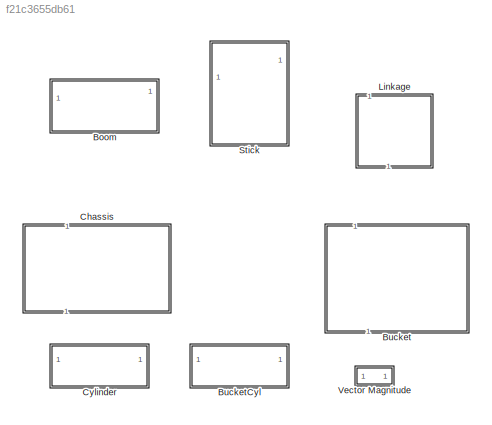
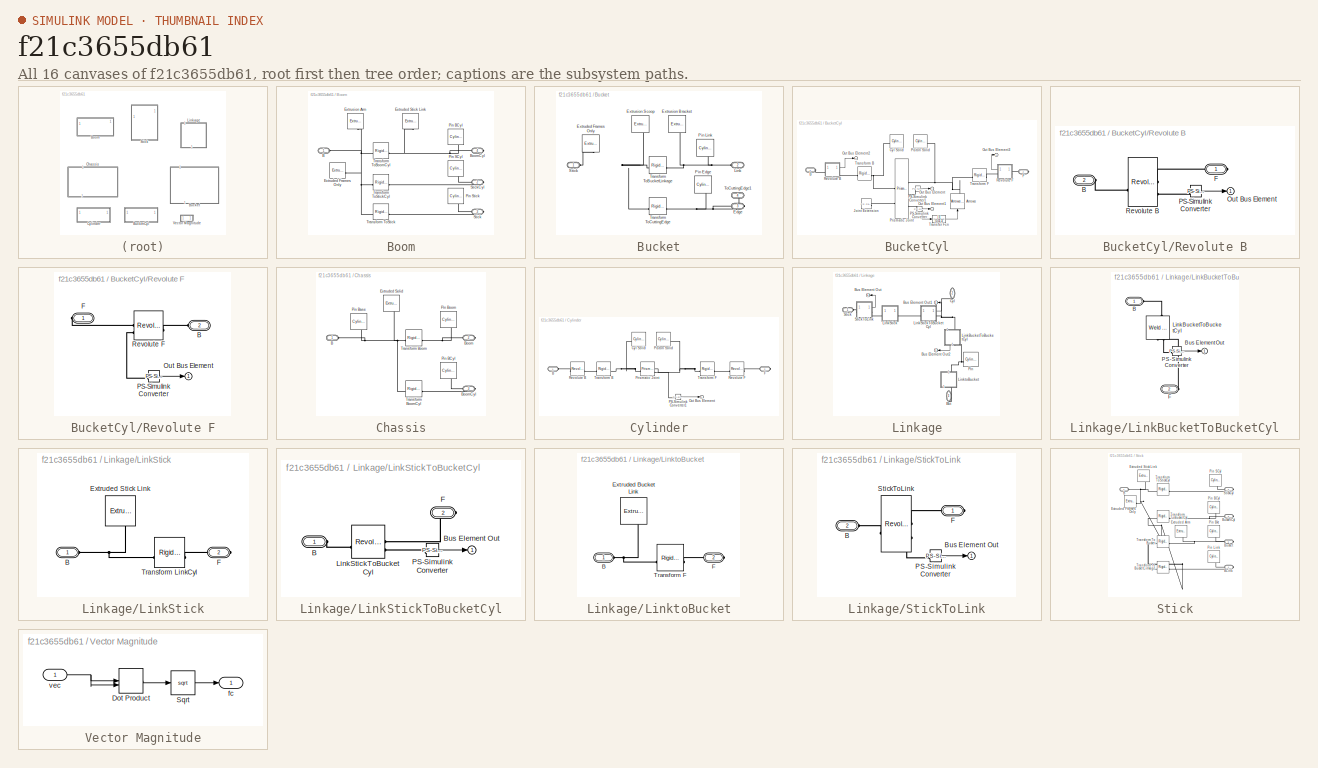
[diagram: thumbnail index - all 16 canvases of the model, root first then tree order]
MODEL slx_f21c3655db61
KIND library
CONFIG SolverName = VariableStepAuto
BLOCK [SubSystem] Boom
BLOCK [PMIOPort] Boom/B
  Side = Left
BLOCK [PMIOPort] Boom/BoomCyl
  Port = 4
  Side = Right
BLOCK [Reference] Boom/Extruded Frames Only  REF=sm_lib/Body Elements/Extruded Solid
  Commented = on
  SourceBlock = sm_lib/Body Elements/Extruded Solid
  SourceType = Extruded Solid
BLOCK [Reference] Boom/Extruded Stick Link  REF=sm_lib/Body Elements/Extruded Solid
  NameLocation = right
  SourceBlock = sm_lib/Body Elements/Extruded Solid
  SourceType = Extruded Solid
BLOCK [Reference] Boom/Extrusion Arm   REF=sm_lib/Body Elements/Extruded Solid
  NameLocation = right
  SourceBlock = sm_lib/Body Elements/Extruded Solid
  SourceType = Extruded Solid
BLOCK [Reference] Boom/Pin BCyl  REF=sm_lib/Body Elements/Cylindrical Solid
  NameLocation = left
  SourceBlock = sm_lib/Body Elements/Cylindrical Solid
  SourceType = Cylindrical Solid
BLOCK [Reference] Boom/Pin SCyl  REF=sm_lib/Body Elements/Cylindrical Solid
  NameLocation = left
  SourceBlock = sm_lib/Body Elements/Cylindrical Solid
  SourceType = Cylindrical Solid
BLOCK [Reference] Boom/Pin Stick  REF=sm_lib/Body Elements/Cylindrical Solid
  NameLocation = left
  SourceBlock = sm_lib/Body Elements/Cylindrical Solid
  SourceType = Cylindrical Solid
BLOCK [PMIOPort] Boom/Stick
  Port = 3
  Side = Right
BLOCK [PMIOPort] Boom/StickCyl
  Port = 2
  Side = Right
BLOCK [Reference] Boom/Transform ToBoomCyl  REF=sm_lib/Frames and
Transforms/Rigid
Transform
  SourceBlock = sm_lib/Frames and\nTransforms/Rigid\nTransform
  SourceType = Rigid\nTransform
BLOCK [Reference] Boom/Transform ToStick  REF=sm_lib/Frames and
Transforms/Rigid
Transform
  SourceBlock = sm_lib/Frames and\nTransforms/Rigid\nTransform
  SourceType = Rigid\nTransform
BLOCK [Reference] Boom/Transform ToStickCyl  REF=sm_lib/Frames and
Transforms/Rigid
Transform
  SourceBlock = sm_lib/Frames and\nTransforms/Rigid\nTransform
  SourceType = Rigid\nTransform
BLOCK [SubSystem] Bucket
  NameLocation = right
BLOCK [PMIOPort] Bucket/Edge
  Port = 3
  Side = Right
BLOCK [Reference] Bucket/Extruded Frames Only  REF=sm_lib/Body Elements/Extruded Solid
  Commented = on
  NameLocation = left
  SourceBlock = sm_lib/Body Elements/Extruded Solid
  SourceType = Extruded Solid
BLOCK [Reference] Bucket/Extrusion Bracket  REF=sm_lib/Body Elements/Extruded Solid
  NameLocation = right
  SourceBlock = sm_lib/Body Elements/Extruded Solid
  SourceType = Extruded Solid
BLOCK [Reference] Bucket/Extrusion Scoop  REF=sm_lib/Body Elements/Extruded Solid
  NameLocation = left
  SourceBlock = sm_lib/Body Elements/Extruded Solid
  SourceType = Extruded Solid
BLOCK [PMIOPort] Bucket/Link
  Port = 2
  Side = Left
BLOCK [Reference] Bucket/Pin Edge  REF=sm_lib/Body Elements/Cylindrical Solid
  NameLocation = right
  SourceBlock = sm_lib/Body Elements/Cylindrical Solid
  SourceType = Cylindrical Solid
BLOCK [Reference] Bucket/Pin Link  REF=sm_lib/Body Elements/Cylindrical Solid
  NameLocation = right
  SourceBlock = sm_lib/Body Elements/Cylindrical Solid
  SourceType = Cylindrical Solid
BLOCK [PMIOPort] Bucket/Stick
  Side = Left
BLOCK [PMIOPort] Bucket/ToCuttingEdge1
  Port = 4
  Side = Right
BLOCK [Reference] Bucket/Transform ToBucketLinkage  REF=sm_lib/Frames and
Transforms/Rigid
Transform
  SourceBlock = sm_lib/Frames and\nTransforms/Rigid\nTransform
  SourceType = Rigid\nTransform
BLOCK [Reference] Bucket/Transform ToCuttingEdge  REF=sm_lib/Frames and
Transforms/Rigid
Transform
  SourceBlock = sm_lib/Frames and\nTransforms/Rigid\nTransform
  SourceType = Rigid\nTransform
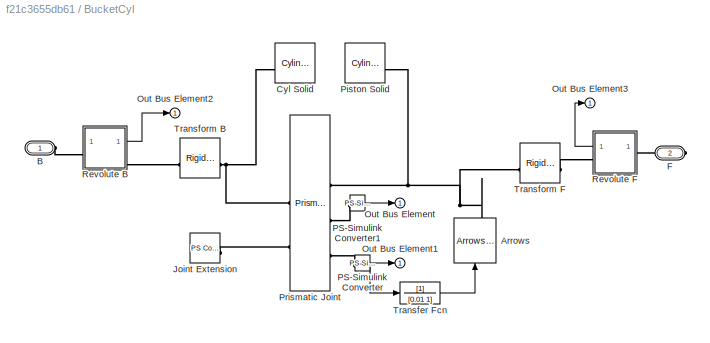
BLOCK [SubSystem] BucketCyl
BLOCK [Reference] BucketCyl/Arrows  REF=Arrowhead_Lib/Arrows Variable PosNeg
  NameLocation = right
  SourceBlock = Arrowhead_Lib/Arrows Variable PosNeg
BLOCK [PMIOPort] BucketCyl/B
  Side = Left
BLOCK [Reference] BucketCyl/Cyl Solid  REF=sm_lib/Body Elements/Cylindrical Solid
  SourceBlock = sm_lib/Body Elements/Cylindrical Solid
  SourceType = Cylindrical Solid
BLOCK [PMIOPort] BucketCyl/F
  Port = 2
  Side = Right
BLOCK [Reference] BucketCyl/Joint Extension  REF=fl_lib/Physical Signals/Sources/PS Constant
  SourceBlock = fl_lib/Physical Signals/Sources/PS Constant
  SourceType = PS Constant
BLOCK [Outport] BucketCyl/Out Bus Element
BLOCK [Outport] BucketCyl/Out Bus Element1
BLOCK [Outport] BucketCyl/Out Bus Element2
BLOCK [Outport] BucketCyl/Out Bus Element3
BLOCK [Reference] BucketCyl/PS-Simulink Converter  REF=nesl_utility/PS-Simulink
Converter
  SourceBlock = nesl_utility/PS-Simulink\nConverter
  SourceType = PS-Simulink\nConverter
BLOCK [Reference] BucketCyl/PS-Simulink Converter1  REF=nesl_utility/PS-Simulink
Converter
  SourceBlock = nesl_utility/PS-Simulink\nConverter
  SourceType = PS-Simulink\nConverter
BLOCK [Reference] BucketCyl/Piston Solid  REF=sm_lib/Body Elements/Cylindrical Solid
  SourceBlock = sm_lib/Body Elements/Cylindrical Solid
  SourceType = Cylindrical Solid
BLOCK [Reference] BucketCyl/Prismatic Joint  REF=sm_lib/Joints/Prismatic
Joint
  SourceBlock = sm_lib/Joints/Prismatic\nJoint
  SourceType = Prismatic\nJoint
BLOCK [SubSystem] BucketCyl/Revolute B
BLOCK [PMIOPort] BucketCyl/Revolute B/B
  Port = 2
  Side = Left
BLOCK [PMIOPort] BucketCyl/Revolute B/F
  Side = Right
BLOCK [Outport] BucketCyl/Revolute B/Out Bus Element
BLOCK [Reference] BucketCyl/Revolute B/PS-Simulink Converter  REF=nesl_utility/PS-Simulink
Converter
  SourceBlock = nesl_utility/PS-Simulink\nConverter
  SourceType = PS-Simulink\nConverter
BLOCK [Reference] BucketCyl/Revolute B/Revolute B  REF=sm_lib/Joints/Revolute Joint
  SourceBlock = sm_lib/Joints/Revolute Joint
  SourceType = Revolute Joint
BLOCK [SubSystem] BucketCyl/Revolute F
BLOCK [PMIOPort] BucketCyl/Revolute F/B
  Port = 2
  Side = Left
BLOCK [PMIOPort] BucketCyl/Revolute F/F
  Side = Right
BLOCK [Outport] BucketCyl/Revolute F/Out Bus Element
BLOCK [Reference] BucketCyl/Revolute F/PS-Simulink Converter  REF=nesl_utility/PS-Simulink
Converter
  SourceBlock = nesl_utility/PS-Simulink\nConverter
  SourceType = PS-Simulink\nConverter
BLOCK [Reference] BucketCyl/Revolute F/Revolute F  REF=sm_lib/Joints/Revolute Joint
  SourceBlock = sm_lib/Joints/Revolute Joint
  SourceType = Revolute Joint
BLOCK [TransferFcn] BucketCyl/Transfer Fcn
  Denominator = [0.01 1]
BLOCK [Reference] BucketCyl/Transform B  REF=sm_lib/Frames and
Transforms/Rigid
Transform
  SourceBlock = sm_lib/Frames and\nTransforms/Rigid\nTransform
  SourceType = Rigid\nTransform
BLOCK [Reference] BucketCyl/Transform F  REF=sm_lib/Frames and
Transforms/Rigid
Transform
  SourceBlock = sm_lib/Frames and\nTransforms/Rigid\nTransform
  SourceType = Rigid\nTransform
BLOCK [SubSystem] Chassis
  NameLocation = right
BLOCK [PMIOPort] Chassis/B
  Side = Left
BLOCK [PMIOPort] Chassis/Boom
  Port = 2
  Side = Right
BLOCK [PMIOPort] Chassis/BoomCyl
  Port = 3
  Side = Right
BLOCK [Reference] Chassis/Extruded Solid  REF=sm_lib/Body Elements/Extruded Solid
  NameLocation = left
  SourceBlock = sm_lib/Body Elements/Extruded Solid
  SourceType = Extruded Solid
BLOCK [Reference] Chassis/Pin BCyl  REF=sm_lib/Body Elements/Cylindrical Solid
  NameLocation = left
  SourceBlock = sm_lib/Body Elements/Cylindrical Solid
  SourceType = Cylindrical Solid
BLOCK [Reference] Chassis/Pin Base  REF=sm_lib/Body Elements/Cylindrical Solid
  NameLocation = left
  SourceBlock = sm_lib/Body Elements/Cylindrical Solid
  SourceType = Cylindrical Solid
BLOCK [Reference] Chassis/Pin Boom  REF=sm_lib/Body Elements/Cylindrical Solid
  NameLocation = left
  SourceBlock = sm_lib/Body Elements/Cylindrical Solid
  SourceType = Cylindrical Solid
BLOCK [Reference] Chassis/Transform Boom  REF=sm_lib/Frames and
Transforms/Rigid
Transform
  SourceBlock = sm_lib/Frames and\nTransforms/Rigid\nTransform
  SourceType = Rigid\nTransform
BLOCK [Reference] Chassis/Transform BoomCyl  REF=sm_lib/Frames and
Transforms/Rigid
Transform
  SourceBlock = sm_lib/Frames and\nTransforms/Rigid\nTransform
  SourceType = Rigid\nTransform
BLOCK [SubSystem] Cylinder
BLOCK [PMIOPort] Cylinder/B
  Side = Left
BLOCK [Reference] Cylinder/Cyl Solid  REF=sm_lib/Body Elements/Cylindrical Solid
  SourceBlock = sm_lib/Body Elements/Cylindrical Solid
  SourceType = Cylindrical Solid
BLOCK [PMIOPort] Cylinder/F
  Port = 2
  Side = Right
BLOCK [Outport] Cylinder/Out Bus Element
BLOCK [Reference] Cylinder/PS-Simulink Converter1  REF=nesl_utility/PS-Simulink
Converter
  SourceBlock = nesl_utility/PS-Simulink\nConverter
  SourceType = PS-Simulink\nConverter
BLOCK [Reference] Cylinder/Piston Solid  REF=sm_lib/Body Elements/Cylindrical Solid
  SourceBlock = sm_lib/Body Elements/Cylindrical Solid
  SourceType = Cylindrical Solid
BLOCK [Reference] Cylinder/Prismatic Joint  REF=sm_lib/Joints/Prismatic
Joint
  SourceBlock = sm_lib/Joints/Prismatic\nJoint
  SourceType = Prismatic\nJoint
BLOCK [Reference] Cylinder/Revolute B  REF=sm_lib/Joints/Revolute Joint
  SourceBlock = sm_lib/Joints/Revolute Joint
  SourceType = Revolute Joint
BLOCK [Reference] Cylinder/Revolute F  REF=sm_lib/Joints/Revolute Joint
  SourceBlock = sm_lib/Joints/Revolute Joint
  SourceType = Revolute Joint
BLOCK [Reference] Cylinder/Transform B  REF=sm_lib/Frames and
Transforms/Rigid
Transform
  SourceBlock = sm_lib/Frames and\nTransforms/Rigid\nTransform
  SourceType = Rigid\nTransform
BLOCK [Reference] Cylinder/Transform F  REF=sm_lib/Frames and
Transforms/Rigid
Transform
  SourceBlock = sm_lib/Frames and\nTransforms/Rigid\nTransform
  SourceType = Rigid\nTransform
BLOCK [SubSystem] Linkage
  NameLocation = right
BLOCK [PMIOPort] Linkage/Bkt
  NameLocation = left
  Port = 3
  Side = Right
BLOCK [Outport] Linkage/Bus Element Out
BLOCK [Outport] Linkage/Bus Element Out1
BLOCK [Outport] Linkage/Bus Element Out2
BLOCK [PMIOPort] Linkage/Cyl
  NameLocation = left
  Port = 2
  Side = Left
BLOCK [SubSystem] Linkage/LinkBucketToBucketCyl
  NameLocation = right
BLOCK [PMIOPort] Linkage/LinkBucketToBucketCyl/B
  Side = Left
BLOCK [Outport] Linkage/LinkBucketToBucketCyl/Bus Element Out
BLOCK [PMIOPort] Linkage/LinkBucketToBucketCyl/F
  Port = 2
  Side = Right
BLOCK [Reference] Linkage/LinkBucketToBucketCyl/LinkBucketToBucketCyl  REF=sm_lib/Joints/Weld Joint
  NameLocation = right
  SourceBlock = sm_lib/Joints/Weld Joint
  SourceType = Weld Joint
BLOCK [Reference] Linkage/LinkBucketToBucketCyl/PS-Simulink Converter  REF=nesl_utility/PS-Simulink
Converter
  SourceBlock = nesl_utility/PS-Simulink\nConverter
  SourceType = PS-Simulink\nConverter
BLOCK [SubSystem] Linkage/LinkStick
BLOCK [PMIOPort] Linkage/LinkStick/B
  Side = Left
BLOCK [Reference] Linkage/LinkStick/Extruded Stick Link  REF=sm_lib/Body Elements/Extruded Solid
  NameLocation = right
  SourceBlock = sm_lib/Body Elements/Extruded Solid
  SourceType = Extruded Solid
BLOCK [PMIOPort] Linkage/LinkStick/F
  Port = 2
  Side = Right
BLOCK [Reference] Linkage/LinkStick/Transform LinkCyl  REF=sm_lib/Frames and
Transforms/Rigid
Transform
  SourceBlock = sm_lib/Frames and\nTransforms/Rigid\nTransform
  SourceType = Rigid\nTransform
BLOCK [SubSystem] Linkage/LinkStickToBucketCyl
BLOCK [PMIOPort] Linkage/LinkStickToBucketCyl/B
  Side = Left
BLOCK [Outport] Linkage/LinkStickToBucketCyl/Bus Element Out
BLOCK [PMIOPort] Linkage/LinkStickToBucketCyl/F
  Port = 2
  Side = Right
BLOCK [Reference] Linkage/LinkStickToBucketCyl/LinkStickToBucketCyl  REF=sm_lib/Joints/Revolute Joint
  SourceBlock = sm_lib/Joints/Revolute Joint
  SourceType = Revolute Joint
BLOCK [Reference] Linkage/LinkStickToBucketCyl/PS-Simulink Converter  REF=nesl_utility/PS-Simulink
Converter
  SourceBlock = nesl_utility/PS-Simulink\nConverter
  SourceType = PS-Simulink\nConverter
BLOCK [SubSystem] Linkage/LinktoBucket
  NameLocation = right
BLOCK [PMIOPort] Linkage/LinktoBucket/B
  Side = Left
BLOCK [Reference] Linkage/LinktoBucket/Extruded Bucket Link  REF=sm_lib/Body Elements/Extruded Solid
  NameLocation = right
  SourceBlock = sm_lib/Body Elements/Extruded Solid
  SourceType = Extruded Solid
BLOCK [PMIOPort] Linkage/LinktoBucket/F
  Port = 2
  Side = Right
BLOCK [Reference] Linkage/LinktoBucket/Transform F  REF=sm_lib/Frames and
Transforms/Rigid
Transform
  SourceBlock = sm_lib/Frames and\nTransforms/Rigid\nTransform
  SourceType = Rigid\nTransform
BLOCK [Reference] Linkage/Pin  REF=sm_lib/Body Elements/Cylindrical Solid
  NameLocation = top
  SourceBlock = sm_lib/Body Elements/Cylindrical Solid
  SourceType = Cylindrical Solid
BLOCK [PMIOPort] Linkage/Stick
  Side = Left
BLOCK [SubSystem] Linkage/StickToLink
BLOCK [PMIOPort] Linkage/StickToLink/B
  Port = 2
  Side = Left
BLOCK [Outport] Linkage/StickToLink/Bus Element Out
BLOCK [PMIOPort] Linkage/StickToLink/F
  Side = Right
BLOCK [Reference] Linkage/StickToLink/PS-Simulink Converter  REF=nesl_utility/PS-Simulink
Converter
  SourceBlock = nesl_utility/PS-Simulink\nConverter
  SourceType = PS-Simulink\nConverter
BLOCK [Reference] Linkage/StickToLink/StickToLink  REF=sm_lib/Joints/Revolute Joint
  SourceBlock = sm_lib/Joints/Revolute Joint
  SourceType = Revolute Joint
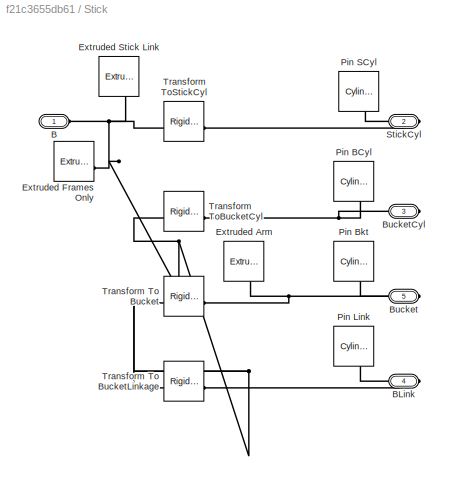
BLOCK [SubSystem] Stick
BLOCK [PMIOPort] Stick/B
  Side = Left
BLOCK [PMIOPort] Stick/BLink
  Port = 4
  Side = Right
BLOCK [PMIOPort] Stick/Bucket
  Port = 5
  Side = Right
BLOCK [PMIOPort] Stick/BucketCyl
  Port = 3
  Side = Right
BLOCK [Reference] Stick/Extruded Arm  REF=sm_lib/Body Elements/Extruded Solid
  NameLocation = right
  SourceBlock = sm_lib/Body Elements/Extruded Solid
  SourceType = Extruded Solid
BLOCK [Reference] Stick/Extruded Frames Only  REF=sm_lib/Body Elements/Extruded Solid
  Commented = on
  SourceBlock = sm_lib/Body Elements/Extruded Solid
  SourceType = Extruded Solid
BLOCK [Reference] Stick/Extruded Stick Link  REF=sm_lib/Body Elements/Extruded Solid
  NameLocation = right
  SourceBlock = sm_lib/Body Elements/Extruded Solid
  SourceType = Extruded Solid
BLOCK [Reference] Stick/Pin BCyl  REF=sm_lib/Body Elements/Cylindrical Solid
  NameLocation = right
  SourceBlock = sm_lib/Body Elements/Cylindrical Solid
  SourceType = Cylindrical Solid
BLOCK [Reference] Stick/Pin Bkt  REF=sm_lib/Body Elements/Cylindrical Solid
  NameLocation = right
  SourceBlock = sm_lib/Body Elements/Cylindrical Solid
  SourceType = Cylindrical Solid
BLOCK [Reference] Stick/Pin Link  REF=sm_lib/Body Elements/Cylindrical Solid
  NameLocation = right
  SourceBlock = sm_lib/Body Elements/Cylindrical Solid
  SourceType = Cylindrical Solid
BLOCK [Reference] Stick/Pin SCyl  REF=sm_lib/Body Elements/Cylindrical Solid
  NameLocation = right
  SourceBlock = sm_lib/Body Elements/Cylindrical Solid
  SourceType = Cylindrical Solid
BLOCK [PMIOPort] Stick/StickCyl
  Port = 2
  Side = Right
BLOCK [Reference] Stick/Transform To Bucket  REF=sm_lib/Frames and
Transforms/Rigid
Transform
  SourceBlock = sm_lib/Frames and\nTransforms/Rigid\nTransform
  SourceType = Rigid\nTransform
BLOCK [Reference] Stick/Transform To BucketLinkage  REF=sm_lib/Frames and
Transforms/Rigid
Transform
  SourceBlock = sm_lib/Frames and\nTransforms/Rigid\nTransform
  SourceType = Rigid\nTransform
BLOCK [Reference] Stick/Transform ToBucketCyl  REF=sm_lib/Frames and
Transforms/Rigid
Transform
  SourceBlock = sm_lib/Frames and\nTransforms/Rigid\nTransform
  SourceType = Rigid\nTransform
BLOCK [Reference] Stick/Transform ToStickCyl  REF=sm_lib/Frames and
Transforms/Rigid
Transform
  SourceBlock = sm_lib/Frames and\nTransforms/Rigid\nTransform
  SourceType = Rigid\nTransform
BLOCK [SubSystem] Vector Magnitude
BLOCK [DotProduct] Vector Magnitude/Dot Product
  OutDataTypeStr = Inherit: Inherit via internal rule
BLOCK [Sqrt] Vector Magnitude/Sqrt
BLOCK [Outport] Vector Magnitude/fc
BLOCK [Inport] Vector Magnitude/vec
LINE BucketCyl/PS-Simulink Converter1:1 -> BucketCyl/Out Bus Element:1
NET BucketCyl/PS-Simulink Converter:1 -> BucketCyl/Out Bus Element1:1, BucketCyl/Transfer Fcn:1
LINE BucketCyl/Revolute B/PS-Simulink Converter:1 -> BucketCyl/Revolute B/Out Bus Element:1
LINE BucketCyl/Revolute B:1 -> BucketCyl/Out Bus Element2:1
LINE BucketCyl/Revolute F/PS-Simulink Converter:1 -> BucketCyl/Revolute F/Out Bus Element:1
LINE BucketCyl/Revolute F:1 -> BucketCyl/Out Bus Element3:1
LINE BucketCyl/Transfer Fcn:1 -> BucketCyl/Arrows:1
LINE Cylinder/PS-Simulink Converter1:1 -> Cylinder/Out Bus Element:1
LINE Linkage/LinkBucketToBucketCyl/PS-Simulink Converter:1 -> Linkage/LinkBucketToBucketCyl/Bus Element Out:1
LINE Linkage/LinkBucketToBucketCyl:1 -> Linkage/Bus Element Out2:1
LINE Linkage/LinkStickToBucketCyl/PS-Simulink Converter:1 -> Linkage/LinkStickToBucketCyl/Bus Element Out:1
LINE Linkage/LinkStickToBucketCyl:1 -> Linkage/Bus Element Out1:1
LINE Linkage/StickToLink/PS-Simulink Converter:1 -> Linkage/StickToLink/Bus Element Out:1
LINE Linkage/StickToLink:1 -> Linkage/Bus Element Out:1
LINE Vector Magnitude/Dot Product:1 -> Vector Magnitude/Sqrt:1
LINE Vector Magnitude/Sqrt:1 -> Vector Magnitude/fc:1
NET Vector Magnitude/vec:1 -> Vector Magnitude/Dot Product:1, Vector Magnitude/Dot Product:2
PNET net1: Boom/B:RConn1 -- Boom/Extruded Frames Only:RConn1 -- Boom/Extrusion Arm :RConn1 -- Boom/Transform ToBoomCyl:LConn1 -- Boom/Transform ToStick:LConn1 -- Boom/Transform ToStickCyl:LConn1
PNET net2: Boom/BoomCyl:RConn1 -- Boom/Extruded Stick Link:RConn1 -- Boom/Pin BCyl:RConn1 -- Boom/Transform ToBoomCyl:RConn1
PNET net3: Boom/Pin SCyl:RConn1 -- Boom/StickCyl:RConn1 -- Boom/Transform ToStickCyl:RConn1
PNET net4: Boom/Pin Stick:RConn1 -- Boom/Stick:RConn1 -- Boom/Transform ToStick:RConn1
PNET net5: Bucket/Edge:RConn1 -- Bucket/Pin Edge:RConn1 -- Bucket/ToCuttingEdge1:RConn1 -- Bucket/Transform ToCuttingEdge:RConn1
PNET net6: Bucket/Extruded Frames Only:RConn1 -- Bucket/Extrusion Scoop:RConn1 -- Bucket/Stick:RConn1 -- Bucket/Transform ToBucketLinkage:LConn1 -- Bucket/Transform ToCuttingEdge:LConn1
PNET net7: Bucket/Extrusion Bracket:RConn1 -- Bucket/Link:RConn1 -- Bucket/Pin Link:RConn1 -- Bucket/Transform ToBucketLinkage:RConn1
PNET net8: BucketCyl/Arrows:RConn1 -- BucketCyl/Piston Solid:LConn1 -- BucketCyl/Prismatic Joint:RConn1 -- BucketCyl/Transform F:RConn1
PLINE BucketCyl/B:RConn1 -- BucketCyl/Revolute B:LConn1
PNET net9: BucketCyl/Cyl Solid:LConn1 -- BucketCyl/Prismatic Joint:LConn1 -- BucketCyl/Transform B:RConn1
PLINE BucketCyl/F:RConn1 -- BucketCyl/Revolute F:LConn1
PLINE BucketCyl/Joint Extension:RConn1 -- BucketCyl/Prismatic Joint:LConn2
PLINE BucketCyl/PS-Simulink Converter1:LConn1 -- BucketCyl/Prismatic Joint:RConn2
PLINE BucketCyl/PS-Simulink Converter:LConn1 -- BucketCyl/Prismatic Joint:RConn3
PLINE BucketCyl/Revolute B/B:RConn1 -- BucketCyl/Revolute B/Revolute B:LConn1
PLINE BucketCyl/Revolute B/F:RConn1 -- BucketCyl/Revolute B/Revolute B:RConn1
PLINE BucketCyl/Revolute B/PS-Simulink Converter:LConn1 -- BucketCyl/Revolute B/Revolute B:RConn2
PLINE BucketCyl/Revolute B:RConn1 -- BucketCyl/Transform B:LConn1
PLINE BucketCyl/Revolute F/B:RConn1 -- BucketCyl/Revolute F/Revolute F:LConn1
PLINE BucketCyl/Revolute F/F:RConn1 -- BucketCyl/Revolute F/Revolute F:RConn1
PLINE BucketCyl/Revolute F/PS-Simulink Converter:LConn1 -- BucketCyl/Revolute F/Revolute F:RConn2
PLINE BucketCyl/Revolute F:RConn1 -- BucketCyl/Transform F:LConn1
PNET net10: Chassis/B:RConn1 -- Chassis/Extruded Solid:RConn1 -- Chassis/Pin Base:RConn1 -- Chassis/Transform Boom:LConn1 -- Chassis/Transform BoomCyl:LConn1
PNET net11: Chassis/Boom:RConn1 -- Chassis/Pin Boom:RConn1 -- Chassis/Transform Boom:RConn1
PNET net12: Chassis/BoomCyl:RConn1 -- Chassis/Pin BCyl:RConn1 -- Chassis/Transform BoomCyl:RConn1
PLINE Cylinder/B:RConn1 -- Cylinder/Revolute B:LConn1
PNET net13: Cylinder/Cyl Solid:LConn1 -- Cylinder/Prismatic Joint:LConn1 -- Cylinder/Transform B:RConn1
PLINE Cylinder/F:RConn1 -- Cylinder/Revolute F:LConn1
PLINE Cylinder/PS-Simulink Converter1:LConn1 -- Cylinder/Prismatic Joint:RConn2
PNET net14: Cylinder/Piston Solid:LConn1 -- Cylinder/Prismatic Joint:RConn1 -- Cylinder/Transform F:RConn1
PLINE Cylinder/Revolute B:RConn1 -- Cylinder/Transform B:LConn1
PLINE Cylinder/Revolute F:RConn1 -- Cylinder/Transform F:LConn1
PLINE Linkage/Bkt:RConn1 -- Linkage/LinktoBucket:LConn1
PNET net15: Linkage/Cyl:RConn1 -- Linkage/LinkBucketToBucketCyl:LConn1 -- Linkage/LinkStickToBucketCyl:RConn1
PLINE Linkage/LinkBucketToBucketCyl/B:RConn1 -- Linkage/LinkBucketToBucketCyl/LinkBucketToBucketCyl:LConn1
PLINE Linkage/LinkBucketToBucketCyl/F:RConn1 -- Linkage/LinkBucketToBucketCyl/LinkBucketToBucketCyl:RConn1
PLINE Linkage/LinkBucketToBucketCyl/LinkBucketToBucketCyl:RConn2 -- Linkage/LinkBucketToBucketCyl/PS-Simulink Converter:LConn1
PNET net16: Linkage/LinkBucketToBucketCyl:RConn1 -- Linkage/LinktoBucket:RConn1 -- Linkage/Pin:RConn1
PNET net17: Linkage/LinkStick/B:RConn1 -- Linkage/LinkStick/Extruded Stick Link:RConn1 -- Linkage/LinkStick/Transform LinkCyl:LConn1
PLINE Linkage/LinkStick/F:RConn1 -- Linkage/LinkStick/Transform LinkCyl:RConn1
PLINE Linkage/LinkStick:LConn1 -- Linkage/StickToLink:RConn1
PLINE Linkage/LinkStick:RConn1 -- Linkage/LinkStickToBucketCyl:LConn1
PLINE Linkage/LinkStickToBucketCyl/B:RConn1 -- Linkage/LinkStickToBucketCyl/LinkStickToBucketCyl:LConn1
PLINE Linkage/LinkStickToBucketCyl/F:RConn1 -- Linkage/LinkStickToBucketCyl/LinkStickToBucketCyl:RConn1
PLINE Linkage/LinkStickToBucketCyl/LinkStickToBucketCyl:RConn2 -- Linkage/LinkStickToBucketCyl/PS-Simulink Converter:LConn1
PNET net18: Linkage/LinktoBucket/B:RConn1 -- Linkage/LinktoBucket/Extruded Bucket Link:RConn1 -- Linkage/LinktoBucket/Transform F:LConn1
PLINE Linkage/LinktoBucket/F:RConn1 -- Linkage/LinktoBucket/Transform F:RConn1
PLINE Linkage/Stick:RConn1 -- Linkage/StickToLink:LConn1
PLINE Linkage/StickToLink/B:RConn1 -- Linkage/StickToLink/StickToLink:LConn1
PLINE Linkage/StickToLink/F:RConn1 -- Linkage/StickToLink/StickToLink:RConn1
PLINE Linkage/StickToLink/PS-Simulink Converter:LConn1 -- Linkage/StickToLink/StickToLink:RConn2
PNET net19: Stick/B:RConn1 -- Stick/Extruded Frames Only:RConn1 -- Stick/Extruded Stick Link:RConn1 -- Stick/Transform To Bucket:LConn1 -- Stick/Transform To BucketLinkage:LConn1 -- Stick/Transform ToBucketCyl:LConn1 -- Stick/Transform ToStickCyl:LConn1
PNET net20: Stick/BLink:RConn1 -- Stick/Pin Link:RConn1 -- Stick/Transform To BucketLinkage:RConn1
PNET net21: Stick/Bucket:RConn1 -- Stick/Extruded Arm:RConn1 -- Stick/Pin Bkt:RConn1 -- Stick/Transform To Bucket:RConn1
PNET net22: Stick/BucketCyl:RConn1 -- Stick/Pin BCyl:RConn1 -- Stick/Transform ToBucketCyl:RConn1
PNET net23: Stick/Pin SCyl:RConn1 -- Stick/StickCyl:RConn1 -- Stick/Transform ToStickCyl:RConn1
note: NET lines group one-source signal fan-out (src -> all destinations, sorted); 1:1 wires keep LINE; PNET lines group multi-terminal physical nets as a canonical sorted terminal list (undirected conserving connections); 2-terminal nets keep the pairwise PLINE form
